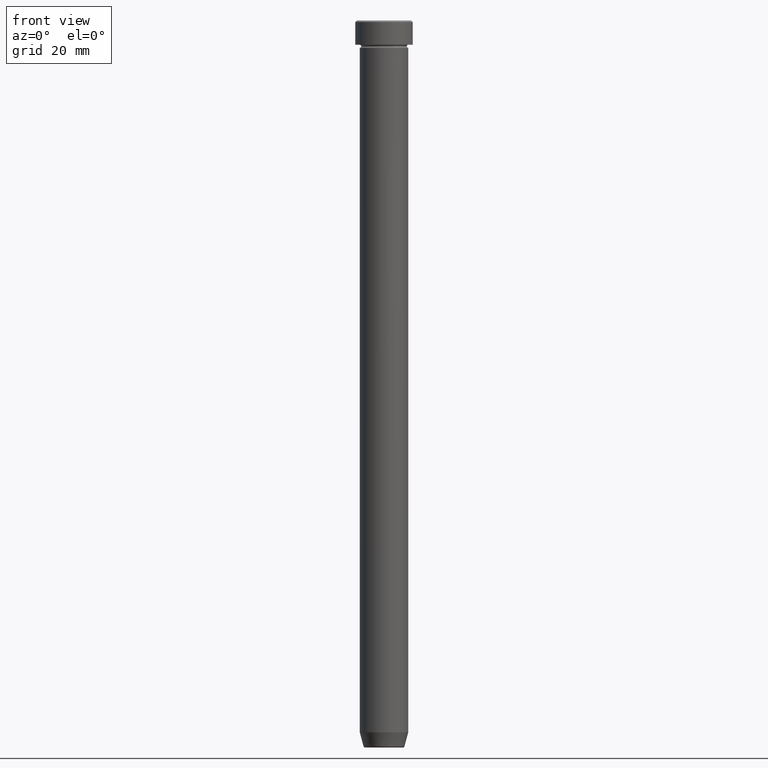
[diagram: clean part render]
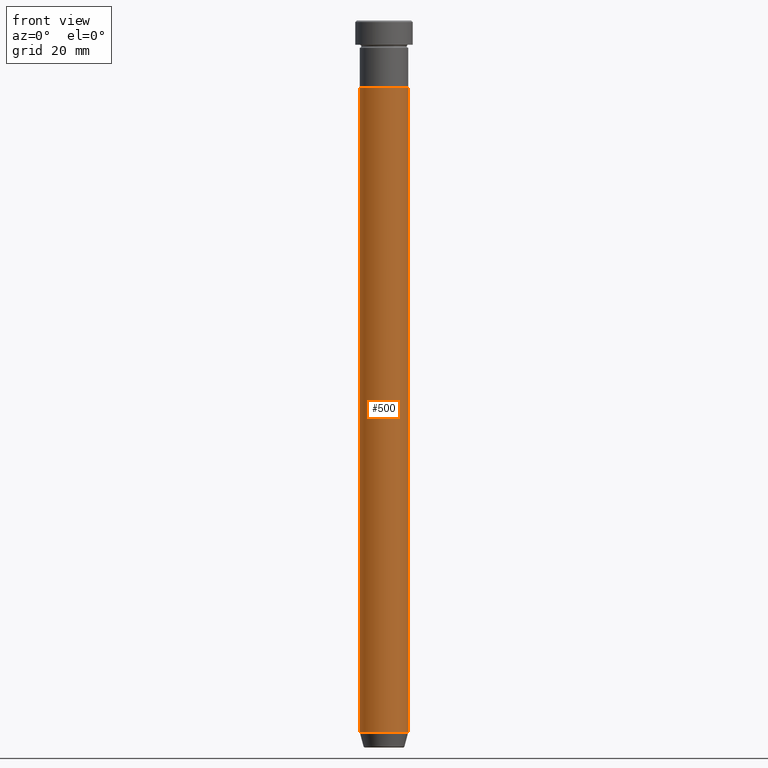
[diagram: same view with one face highlighted and labeled with its STEP entity id]
A machine part, front view. The second image highlights one B-rep face of the part: STEP entity #500.
In plain terms, the highlighted cylindrical surface (edge-blend (fillet) strip) has radius 8 mm, axis along (-0, -0, 1).
Its self-contained STEP definition (entity closure, byte-faithful):
#26 = DIRECTION ( 'NONE',  ( -0.000000000000000000, -0.000000000000000000, 1.000000000000000000 ) ) ;
#43 = ORIENTED_EDGE ( 'NONE', *, *, #229, .F. ) ;
#54 = CYLINDRICAL_SURFACE ( 'NONE', #71, 8.000000000000000000 ) ;
#56 = EDGE_LOOP ( 'NONE', ( #246, #143, #321, #43 ) ) ;
#58 = VERTEX_POINT ( 'NONE', #304 ) ;
#59 = AXIS2_PLACEMENT_3D ( 'NONE', #280, #522, #339 ) ;
#71 = AXIS2_PLACEMENT_3D ( 'NONE', #186, #192, #188 ) ;
#98 = CARTESIAN_POINT ( 'NONE',  ( -8.000000000000000000, 9.797174393178825657E-16, -22.00000000000000000 ) ) ;
#106 = DIRECTION ( 'NONE',  ( -0.000000000000000000, -0.000000000000000000, 1.000000000000000000 ) ) ;
#143 = ORIENTED_EDGE ( 'NONE', *, *, #412, .T. ) ;
#147 = CARTESIAN_POINT ( 'NONE',  ( 8.000000000000000000, 0.000000000000000000, 0.000000000000000000 ) ) ;
#186 = CARTESIAN_POINT ( 'NONE',  ( 0.000000000000000000, 0.000000000000000000, 0.000000000000000000 ) ) ;
#188 = DIRECTION ( 'NONE',  ( 1.000000000000000000, 0.000000000000000000, 0.000000000000000000 ) ) ;
#192 = DIRECTION ( 'NONE',  ( -0.000000000000000000, -0.000000000000000000, 1.000000000000000000 ) ) ;
#201 = CARTESIAN_POINT ( 'NONE',  ( -8.000000000000000000, 9.797174393178825657E-16, 0.000000000000000000 ) ) ;
#229 = EDGE_CURVE ( 'NONE', #523, #561, #581, .T. ) ;
#246 = ORIENTED_EDGE ( 'NONE', *, *, #415, .F. ) ;
#250 = VECTOR ( 'NONE', #471, 1000.000000000000000 ) ;
#252 = LINE ( 'NONE', #201, #250 ) ;
#280 = CARTESIAN_POINT ( 'NONE',  ( 0.000000000000000000, 0.000000000000000000, -235.0000000000000000 ) ) ;
#304 = CARTESIAN_POINT ( 'NONE',  ( -8.000000000000000000, 9.797174393178825657E-16, -235.0000000000000000 ) ) ;
#316 = LINE ( 'NONE', #147, #407 ) ;
#320 = AXIS2_PLACEMENT_3D ( 'NONE', #437, #26, #408 ) ;
#321 = ORIENTED_EDGE ( 'NONE', *, *, #585, .T. ) ;
#339 = DIRECTION ( 'NONE',  ( 1.000000000000000000, 0.000000000000000000, 0.000000000000000000 ) ) ;
#384 = VERTEX_POINT ( 'NONE', #525 ) ;
#407 = VECTOR ( 'NONE', #106, 1000.000000000000000 ) ;
#408 = DIRECTION ( 'NONE',  ( 1.000000000000000000, 0.000000000000000000, 0.000000000000000000 ) ) ;
#412 = EDGE_CURVE ( 'NONE', #58, #384, #595, .T. ) ;
#415 = EDGE_CURVE ( 'NONE', #58, #523, #252, .T. ) ;
#437 = CARTESIAN_POINT ( 'NONE',  ( 0.000000000000000000, 0.000000000000000000, -22.00000000000000000 ) ) ;
#460 = FACE_OUTER_BOUND ( 'NONE', #56, .T. ) ;
#471 = DIRECTION ( 'NONE',  ( -0.000000000000000000, -0.000000000000000000, 1.000000000000000000 ) ) ;
#477 = CARTESIAN_POINT ( 'NONE',  ( 8.000000000000000000, 0.000000000000000000, -22.00000000000000000 ) ) ;
#500 = ADVANCED_FACE ( 'NONE', ( #460 ), #54, .T. ) ;
#522 = DIRECTION ( 'NONE',  ( -0.000000000000000000, -0.000000000000000000, 1.000000000000000000 ) ) ;
#523 = VERTEX_POINT ( 'NONE', #98 ) ;
#525 = CARTESIAN_POINT ( 'NONE',  ( 8.000000000000000000, 0.000000000000000000, -235.0000000000000000 ) ) ;
#561 = VERTEX_POINT ( 'NONE', #477 ) ;
#581 = CIRCLE ( 'NONE', #320, 8.000000000000000000 ) ;
#585 = EDGE_CURVE ( 'NONE', #384, #561, #316, .T. ) ;
#595 = CIRCLE ( 'NONE', #59, 8.000000000000000000 ) ;